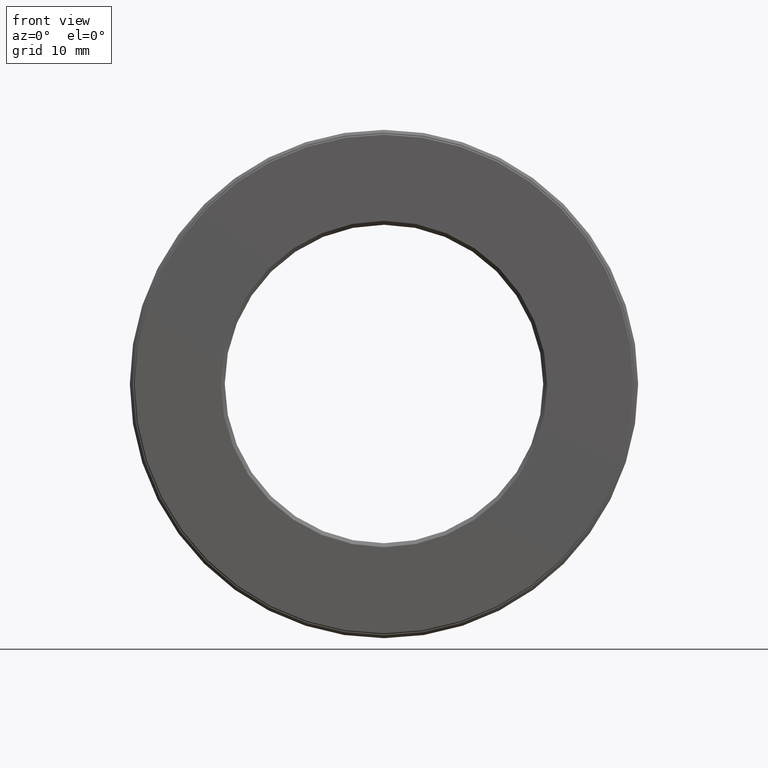
[diagram: clean part render]
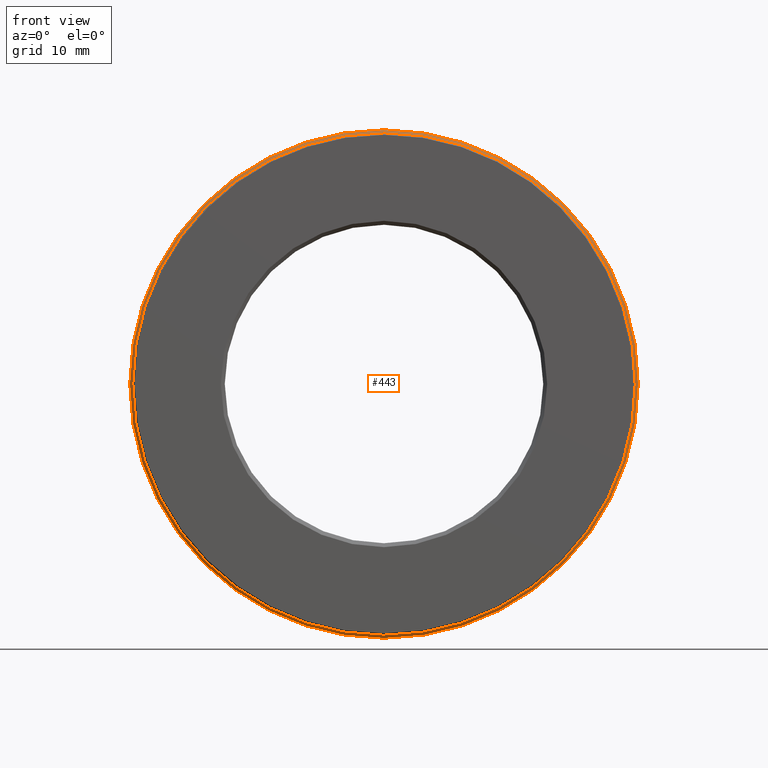
[diagram: same view with one face highlighted and labeled with its STEP entity id]
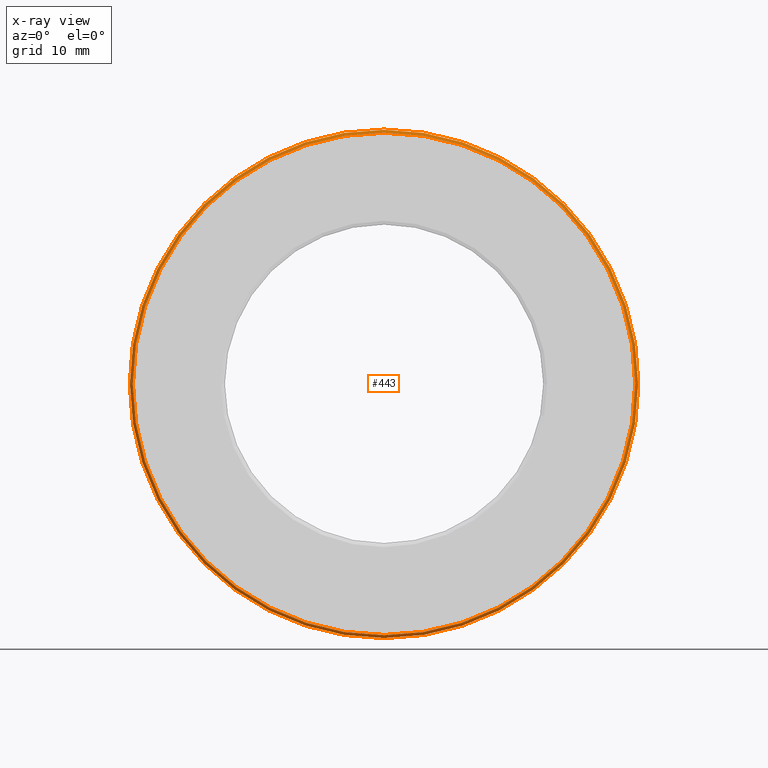
[diagram: x-ray of the same camera — body ghosted, the highlighted face saturated]
A machine part, front view. The second image highlights one B-rep face of the part: STEP entity #443.
The next image is the same camera in x-ray: the body ghosted, the highlighted face saturated — about 0% of this face is hidden behind the body in this view.
In plain terms, the highlighted conical surface has half-angle 45 deg.
Its self-contained STEP definition (entity closure, byte-faithful):
#27 = EDGE_CURVE ( 'NONE', #537, #537, #337, .T. ) ;
#38 = CARTESIAN_POINT ( 'NONE',  ( 0.0000000000000000000, -7.043045608665678100E-017, 0.0000000000000000000 ) ) ;
#101 = DIRECTION ( 'NONE',  ( -0.0000000000000000000, 1.000000000000000000, -0.0000000000000000000 ) ) ;
#129 = ORIENTED_EDGE ( 'NONE', *, *, #226, .T. ) ;
#146 = CARTESIAN_POINT ( 'NONE',  ( 0.0000000000000000000, -7.043045608665678100E-017, 0.0000000000000000000 ) ) ;
#177 = EDGE_LOOP ( 'NONE', ( #129 ) ) ;
#181 = AXIS2_PLACEMENT_3D ( 'NONE', #450, #494, #398 ) ;
#212 = AXIS2_PLACEMENT_3D ( 'NONE', #38, #409, #458 ) ;
#226 = EDGE_CURVE ( 'NONE', #573, #573, #584, .T. ) ;
#233 = AXIS2_PLACEMENT_3D ( 'NONE', #146, #101, #375 ) ;
#248 = FACE_BOUND ( 'NONE', #177, .T. ) ;
#281 = EDGE_LOOP ( 'NONE', ( #488 ) ) ;
#321 = CONICAL_SURFACE ( 'NONE', #233, 1.281875000000000100, 0.7853981633974505000 ) ;
#337 = CIRCLE ( 'NONE', #181, 1.296875000000000000 ) ;
#375 = DIRECTION ( 'NONE',  ( 0.0000000000000000000, 0.0000000000000000000, 1.000000000000000000 ) ) ;
#387 = CARTESIAN_POINT ( 'NONE',  ( 0.0000000000000000000, 0.01499999999999984000, 1.296875000000000000 ) ) ;
#398 = DIRECTION ( 'NONE',  ( 0.0000000000000000000, 0.0000000000000000000, 1.000000000000000000 ) ) ;
#409 = DIRECTION ( 'NONE',  ( -0.0000000000000000000, 1.000000000000000000, -0.0000000000000000000 ) ) ;
#433 = CARTESIAN_POINT ( 'NONE',  ( 0.0000000000000000000, -7.043045608665678100E-017, 1.281875000000000100 ) ) ;
#443 = ADVANCED_FACE ( 'NONE', ( #516, #248 ), #321, .T. ) ;
#450 = CARTESIAN_POINT ( 'NONE',  ( 0.0000000000000000000, 0.01499999999999984000, 0.0000000000000000000 ) ) ;
#458 = DIRECTION ( 'NONE',  ( 0.0000000000000000000, 0.0000000000000000000, 1.000000000000000000 ) ) ;
#488 = ORIENTED_EDGE ( 'NONE', *, *, #27, .F. ) ;
#494 = DIRECTION ( 'NONE',  ( -0.0000000000000000000, 1.000000000000000000, -0.0000000000000000000 ) ) ;
#516 = FACE_OUTER_BOUND ( 'NONE', #281, .T. ) ;
#537 = VERTEX_POINT ( 'NONE', #387 ) ;
#573 = VERTEX_POINT ( 'NONE', #433 ) ;
#584 = CIRCLE ( 'NONE', #212, 1.281875000000000100 ) ;